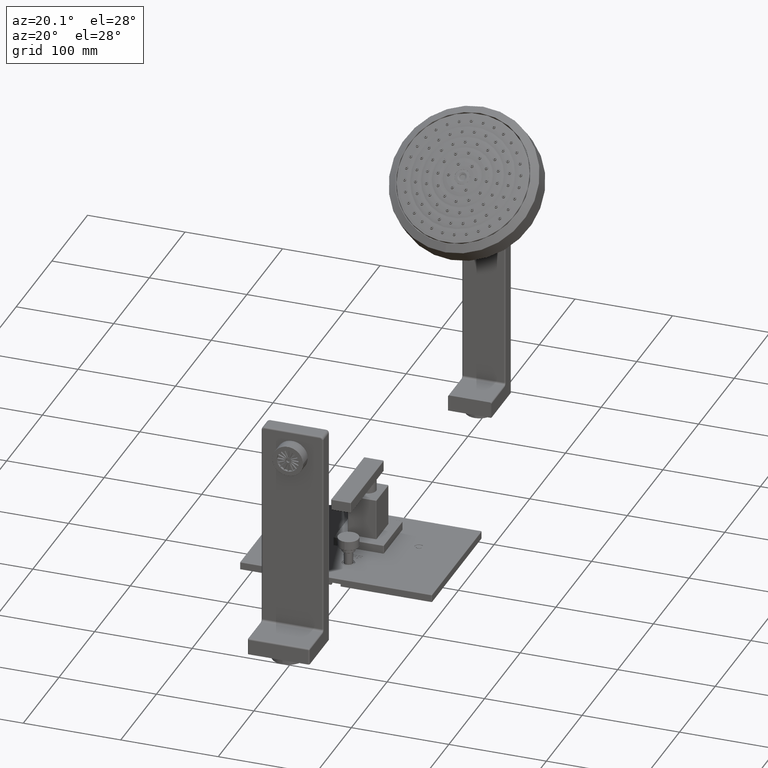
[diagram: clean part render]
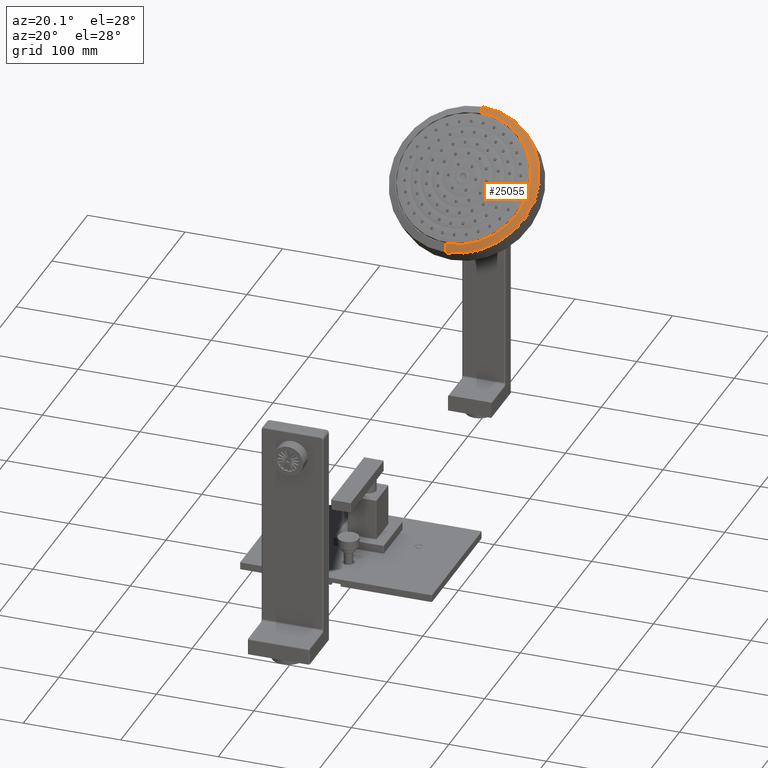
[diagram: same view with one face highlighted and labeled with its STEP entity id]
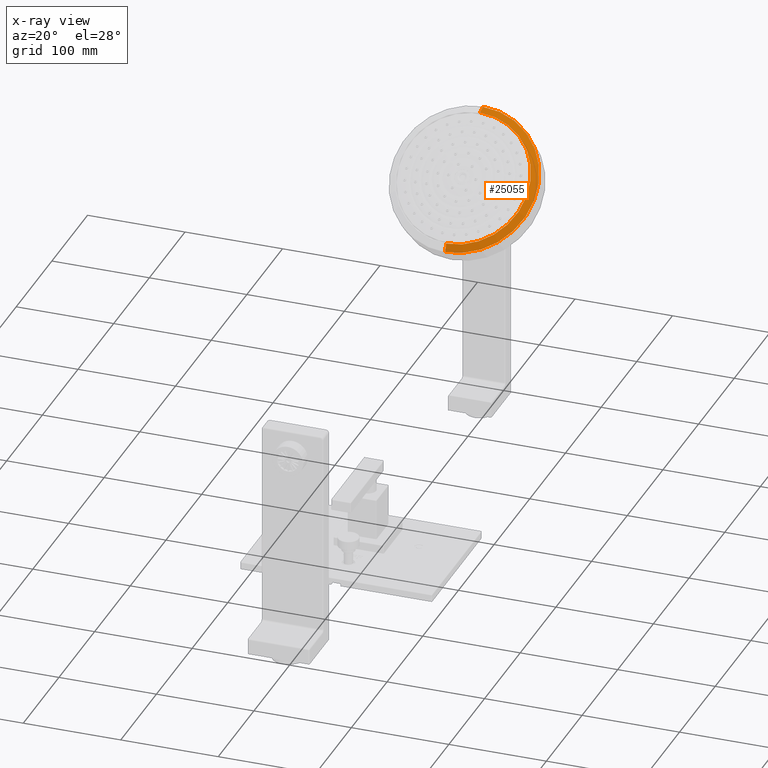
[diagram: x-ray of the same camera — body ghosted, the highlighted face saturated]
A machine part, auxiliary view. The second image highlights one B-rep face of the part: STEP entity #25055.
The next image is the same camera in x-ray: the body ghosted, the highlighted face saturated — about 0% of this face is hidden behind the body in this view.
In plain terms, the highlighted conical surface has half-angle 60 deg.
Its self-contained STEP definition (entity closure, byte-faithful):
#20972=CARTESIAN_POINT('',(0.E0,1.138648236193E1,1.038896424747E1));
#20973=DIRECTION('',(0.E0,-7.071067811865E-1,7.071067811865E-1));
#20974=DIRECTION('',(0.E0,-7.071067811865E-1,-7.071067811865E-1));
#20975=AXIS2_PLACEMENT_3D('',#20972,#20973,#20974);
#20980=DIRECTION('',(0.E0,2.588190451025E-1,9.659258262891E-1));
#20981=VECTOR('',#20980,3.300933599904E-1);
#20982=CARTESIAN_POINT('',(-1.189762035560E-14,9.307588425244E0,
8.310070310786E0));
#20983=LINE('',#20982,#20981);
#20987=CARTESIAN_POINT('',(0.E0,1.126977673530E1,1.050566987411E1));
#20988=DIRECTION('',(0.E0,-7.071067811865E-1,7.071067811865E-1));
#20989=DIRECTION('',(0.E0,-7.071067811865E-1,-7.071067811865E-1));
#20990=AXIS2_PLACEMENT_3D('',#20987,#20988,#20989);
#20995=DIRECTION('',(0.E0,-9.659258262891E-1,-2.588190451025E-1));
#20996=VECTOR('',#20995,3.300933599904E-1);
#20997=CARTESIAN_POINT('',(1.132111664616E-14,1.346537629862E1,
1.246785818416E1));
#20998=LINE('',#20997,#20996);
#24289=CARTESIAN_POINT('',(0.E0,9.307588425244E0,8.310070310786E0));
#24290=CARTESIAN_POINT('',(0.E0,1.346537629862E1,1.246785818416E1));
#24291=VERTEX_POINT('',#24289);
#24292=VERTEX_POINT('',#24290);
#24297=CARTESIAN_POINT('',(0.E0,1.314653059712E1,1.238242373594E1));
#24298=CARTESIAN_POINT('',(0.E0,9.393022873472E0,8.628916012287E0));
#24299=VERTEX_POINT('',#24297);
#24300=VERTEX_POINT('',#24298);
#25043=CARTESIAN_POINT('',(0.E0,1.132812954861E1,1.044731706079E1));
#25044=DIRECTION('',(0.E0,7.071067811865E-1,-7.071067811865E-1));
#25045=DIRECTION('',(0.E0,7.071067811865E-1,7.071067811865E-1));
#25046=AXIS2_PLACEMENT_3D('',#25043,#25044,#25045);
#25047=CONICAL_SURFACE('',#25046,2.797065382314E0,6.E1);
#25048=ORIENTED_EDGE('',*,*,#25027,.F.);
#25049=ORIENTED_EDGE('',*,*,#24988,.T.);
#25051=ORIENTED_EDGE('',*,*,#25050,.T.);
#25052=ORIENTED_EDGE('',*,*,#24985,.F.);
#25053=EDGE_LOOP('',(#25048,#25049,#25051,#25052));
#25054=FACE_OUTER_BOUND('',#25053,.F.);
#20976=CIRCLE('',#20975,2.94E0);
#20991=CIRCLE('',#20990,2.654130764628E0);
#24985=EDGE_CURVE('',#24292,#24299,#20998,.T.);
#24988=EDGE_CURVE('',#24291,#24300,#20983,.T.);
#25027=EDGE_CURVE('',#24291,#24292,#20976,.T.);
#25050=EDGE_CURVE('',#24300,#24299,#20991,.T.);
#25055=ADVANCED_FACE('',(#25054),#25047,.T.);